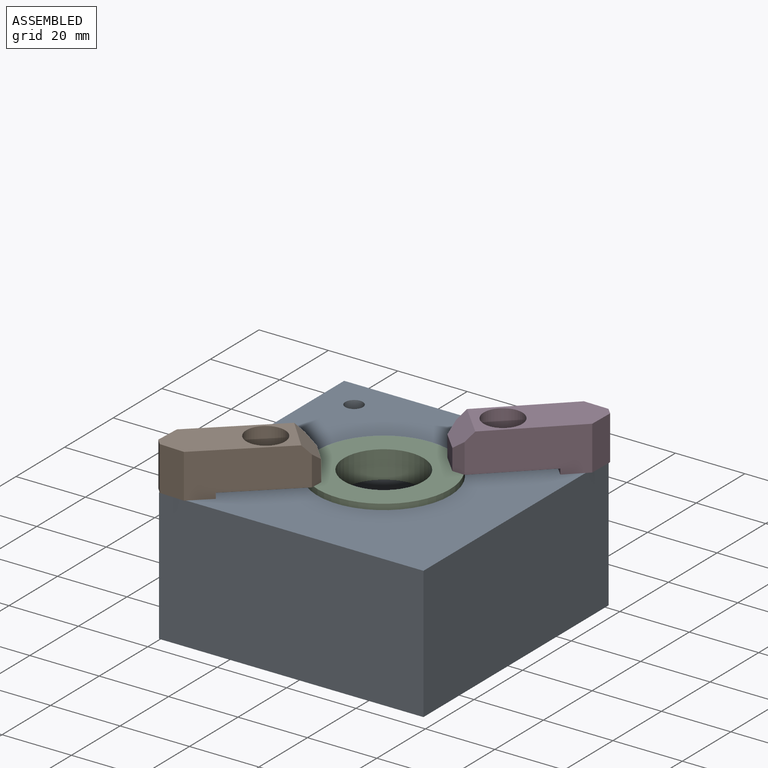
[diagram: assembled view]
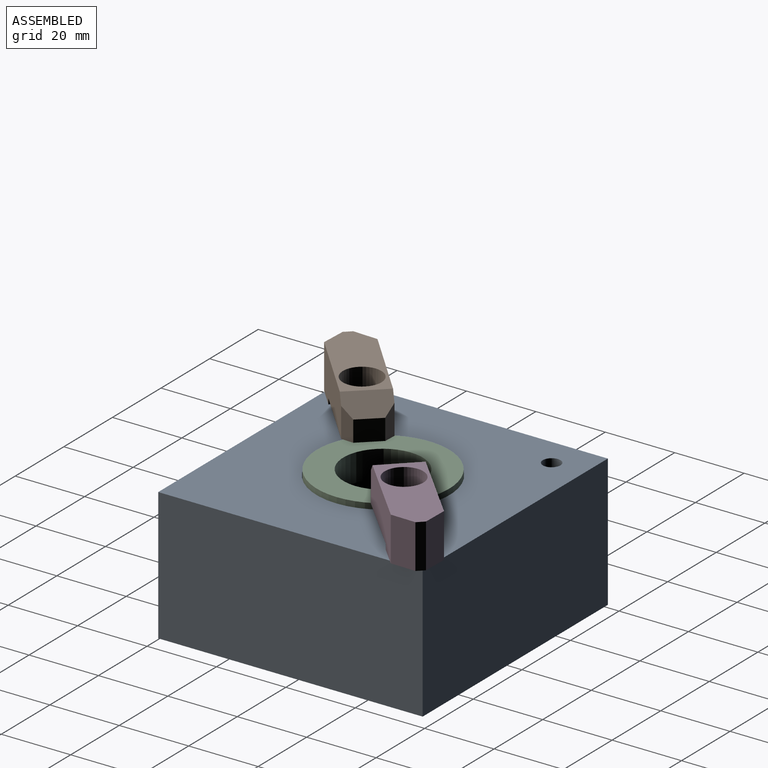
[diagram: assembled view, second angle]
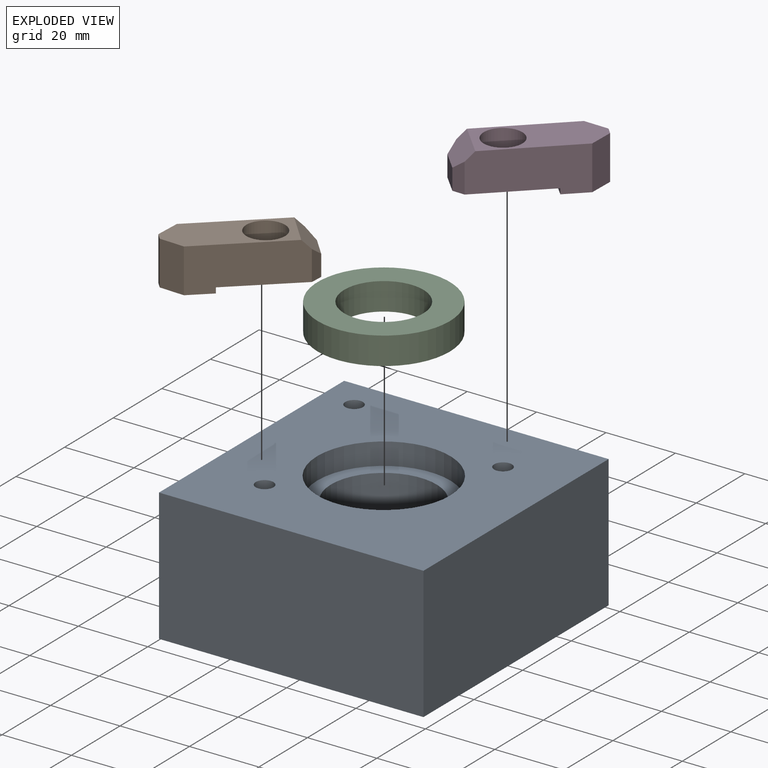
[diagram: exploded view]
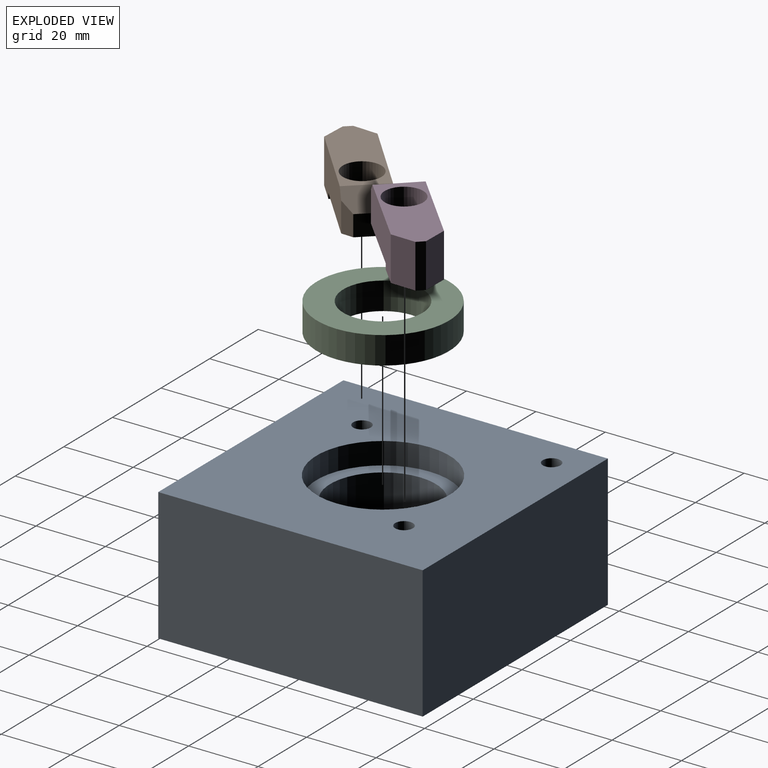
[diagram: exploded view, second angle]
ASSEMBLY  parts=4 mates=3
PART A: 17 faces, bbox 76.2x76.2x38.1 mm
  f0: cylinder r=6.35mm len=19.05mm, axis (0,0,1), area 760.1mm2, adj f5,f10
  f1: plane 76.2x38.1mm, normal (0,-1,0), area 2903.2mm2, adj f2,f4,f5,f6
  f2: plane 76.2x38.1mm, normal (1,0,0), area 2903.2mm2, adj f1,f3,f5,f6
  f3: plane 76.2x38.1mm, normal (0,1,0), area 2903.2mm2, adj f2,f4,f5,f6
  f4: plane 76.2x38.1mm, normal (-1,0,0), area 2903.2mm2, adj f1,f3,f5,f6
  f5: plane 76.2x76.2mm, normal (0,0,-1), area 5679.8mm2, adj f0,f1,f2,f3,f4
  f6: plane 76.2x76.2mm, normal (0,0,1), area 4589.9mm2, adj f1,f2,f3,f4,f7,f12,f14,f16
  f7: cylinder r=19.18mm len=38.35mm, axis (0,0,1), area 765.1mm2, adj f6,f8
  f8: plane 38.35x38.35mm, normal (0,0,1), area 425.7mm2, adj f7,f9
  f9: cylinder r=15.24mm len=30.48mm, axis (0,0,1), area 1216.1mm2, adj f8,f10
  f10: plane 30.48x30.48mm, normal (0,0,1), area 603mm2, adj f0,f9
  f11: cone r=0mm half-angle=59deg, axis (0,0,1), area 23.9mm2, adj f12
  f12: cylinder r=2.55mm len=19.05mm, axis (0,0,1), area 305.5mm2, adj f6,f11
  f13: cone r=0mm half-angle=59deg, axis (0,0,1), area 23.9mm2, adj f14
  f14: cylinder r=2.55mm len=19.05mm, axis (0,0,1), area 305.5mm2, adj f6,f13
  f15: cone r=0mm half-angle=59deg, axis (0,0,1), area 23.6mm2, adj f16
  f16: cylinder r=2.54mm len=19.05mm, axis (0,0,1), area 304mm2, adj f6,f15
PART B: 16 faces, bbox 38.1x12.7x12.7 mm
  f0: plane 30.48x12.7mm, normal (0,-1,0), area 347.6mm2, adj f2,f5,f6,f7,f12,f13,f15
  f1: plane 7.62x6.03mm, normal (-1,0,0), area 46mm2, adj f6,f13,f14,f15
  f2: plane 12.7x12.7mm, normal (0,0,-1), area 135.5mm2, adj f0,f3,f4,f7,f11,f12
  f3: plane 30.48x12.7mm, normal (0,1,0), area 347.6mm2, adj f2,f5,f6,f7,f11,f13,f14
  f4: plane 12.7x2.54mm, normal (1,0,0), area 32.3mm2, adj f2,f5,f11,f12
  f5: plane 33.02x12.7mm, normal (0,0,1), area 296.6mm2, adj f0,f3,f4,f10,f11,f12,f13
  f6: plane 25.4x12.7mm, normal (0,0,-1), area 280.3mm2, adj f0,f1,f3,f7,f8,f14,f15
  f7: plane 12.7x1.59mm, normal (-1,0,0), area 20.2mm2, adj f0,f2,f3,f6
  f8: cylinder r=3.38mm len=6.76mm, axis (0,0,1), area 101.1mm2, adj f6,f9
  f9: plane 11.11x11.11mm, normal (0,0,1), area 61.1mm2, adj f8,f10
  f10: cylinder r=5.56mm len=11.11mm, axis (0,0,1), area 221.7mm2, adj f5,f9
  f11: plane 12.7x5.08mm, normal (0.71,0.71,0), area 91.2mm2, adj f2,f3,f4,f5
  f12: plane 12.7x5.08mm, normal (0.71,-0.71,0), area 91.2mm2, adj f0,f2,f4,f5
  f13: plane 12.7x5.08mm, normal (-0.71,0,0.71), area 82.1mm2, adj f0,f1,f3,f5,f14,f15
  f14: plane 8.57x2.54mm, normal (-0.71,0.71,0), area 26.2mm2, adj f1,f3,f6,f13
  f15: plane 8.57x2.54mm, normal (-0.71,-0.71,0), area 26.2mm2, adj f0,f1,f6,f13
PART C: 4 faces, bbox 38.1x38.1x7.9 mm
  f0: cylinder r=11.43mm len=22.86mm, axis (0,0,-1), area 570mm2, adj f2,f3
  f1: cylinder r=19.05mm len=38.1mm, axis (0,0,-1), area 950.1mm2, adj f2,f3
  f2: plane 38.1x38.1mm, normal (0,0,1), area 729.7mm2, adj f0,f1
  f3: plane 38.1x38.1mm, normal (0,0,-1), area 729.7mm2, adj f0,f1
PART D: same geometry as B
PLACE A at identity fixed
PLACE B rot(axis=(0,0,-1),137.4deg) t=(-24.68,-24.32,0)mm
PLACE C t=(0,0,-6.35)mm
PLACE D rot(axis=(0,0,1),43.9deg) t=(24.78,24.61,0)mm
MATE revolute B.f6 <-> A.f13  axis (0,0,-1) through (-20.21,-20.21,1.59)mm
MATE fastened C.f1 <-> A.f7  axis (0,0,-1) through (0,0,-6.35)mm
MATE revolute D.f8 <-> A.f11  axis (0,0,-1) through (20.21,20.21,1.59)mm
